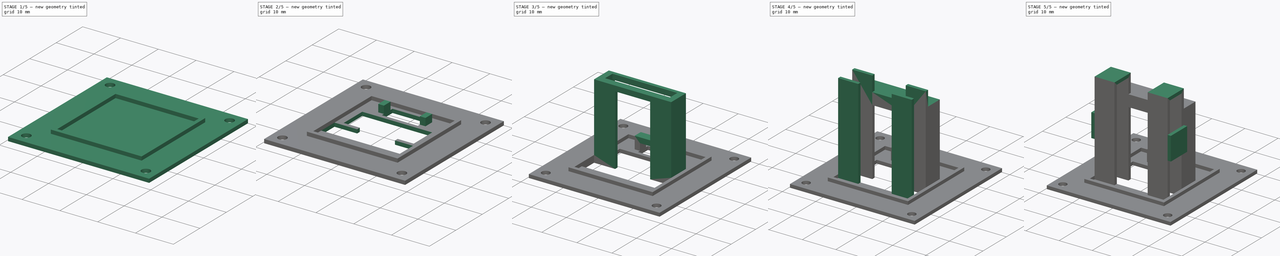
[diagram: build sequence overview — one tinted view per stage of 5, left to right]
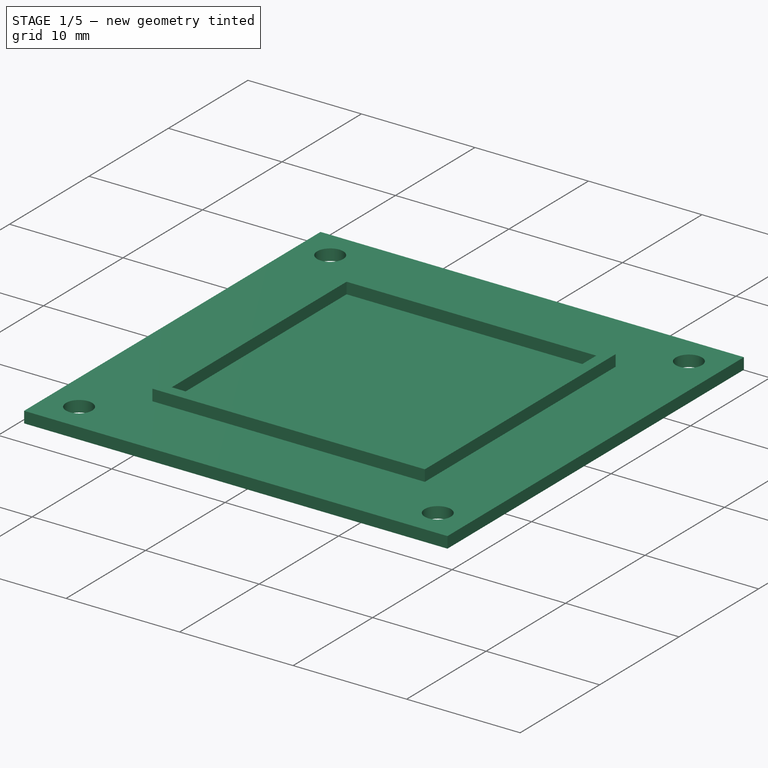
[diagram: stage 1 of 5 — iso view after this stage's code; geometry added in this stage tinted green]
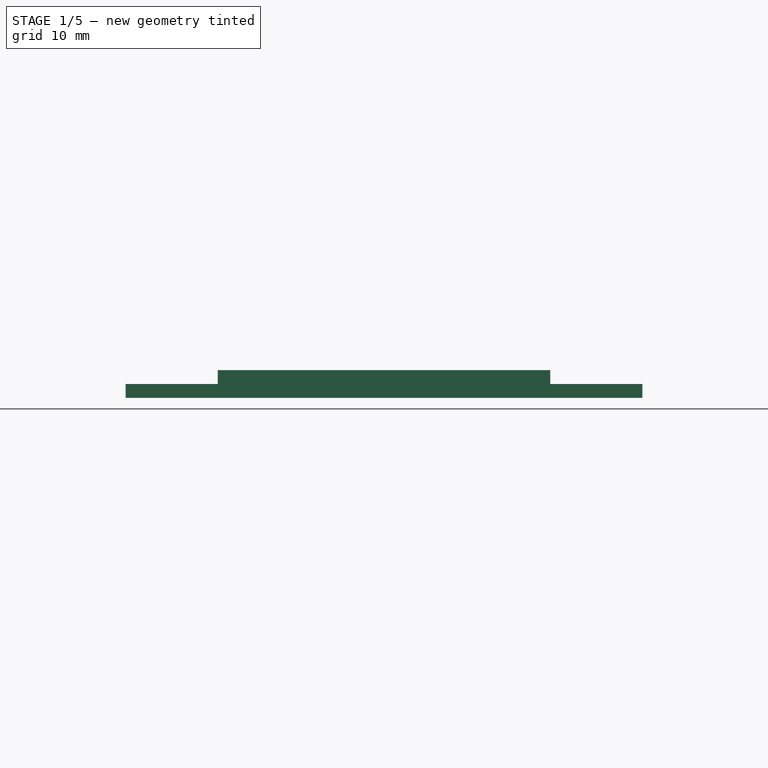
[diagram: stage 1 of 5 — front view after this stage's code; geometry added in this stage tinted green]
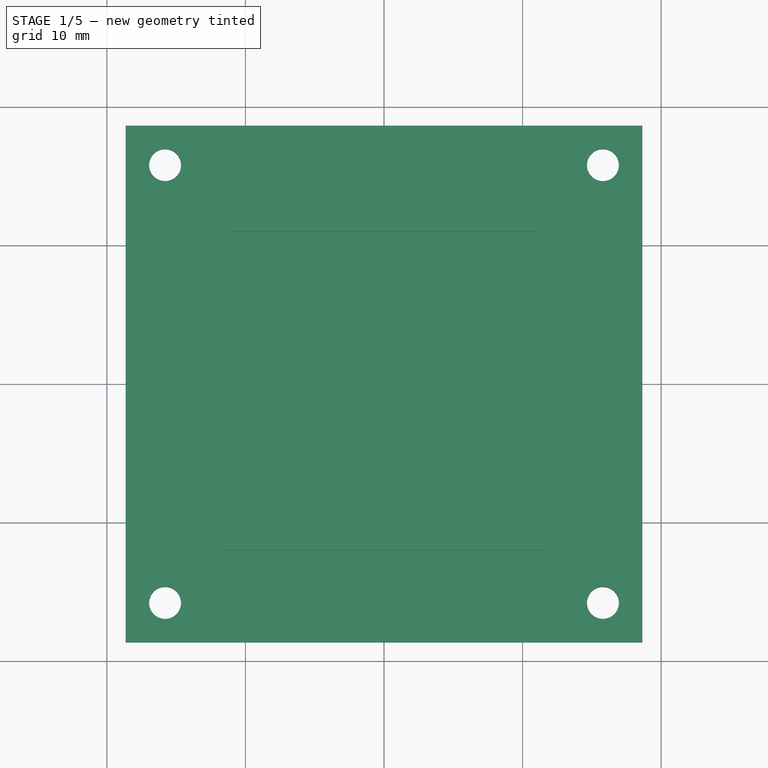
[diagram: stage 1 of 5 — top view after this stage's code; geometry added in this stage tinted green]
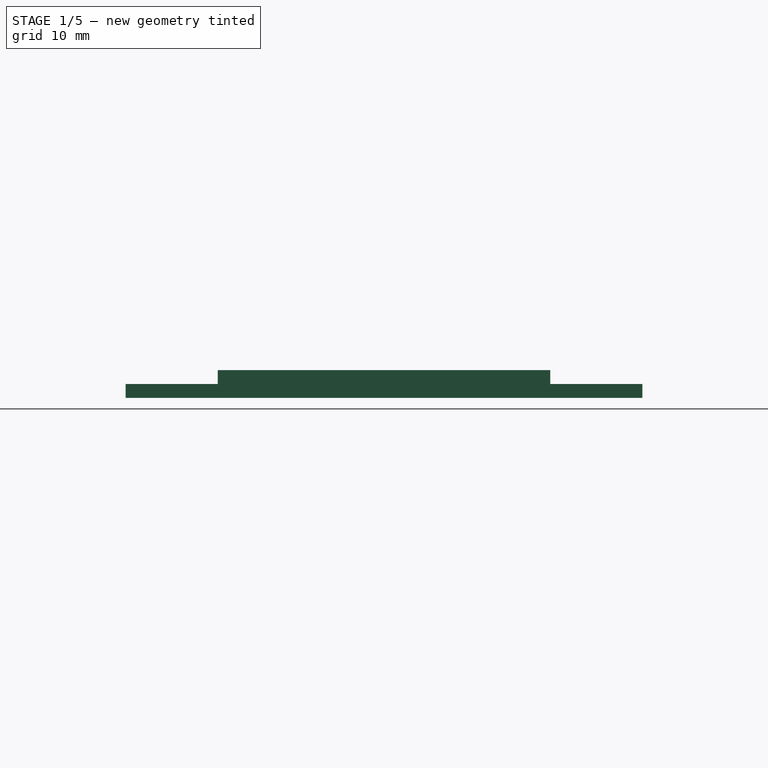
[diagram: stage 1 of 5 — right view after this stage's code; geometry added in this stage tinted green]
FCSTD DOCUMENT  (FreeCAD 1.0R39109 (Git))
Label: bbk3_inside
License: All rights reserved
LicenseURL: https://en.wikipedia.org/wiki/All_rights_reserved
objects: Sketcher::SketchObject×15, PartDesign::Pad×12, PartDesign::Pocket×3, Spreadsheet::Sheet×1, PartDesign::Body×1
note: 76 computed .brp shape members not serialized (recipe doc carries the construction recipe); baked Part::Feature solids carry a one-line shape summary decoded from their .brp

FEATURE [Spreadsheet::Sheet] Spreadsheet  label="inside_parameters"
  cells = A1='plate_length; B1(plate_length)=37.3; A2='plate_height; B2(plate_height)=1; A3='radius_screw; B3(radius_screw)=1.15; A4='screw_ditsance; B4(screw_ditsance)=15.8; A5='fortification_length; B5(fortification_length)=24; A6='fortification_height; B6(fortification_height)=1; A7='fortification_width; B7(fortification_width)=1; A8='battery_hole_width; B8(battery_hole_width)=5; A9='battery_hole_distance; B9(battery_hole_distance)=5.5; A10='pcb_hole_width; B10(pcb_hole_width)=7; A11='pcb_hole_length; B11(pcb_hole_length)=18.5; A12='pcb_hole_distance; B12(pcb_hole_distance)=1.5; A13='pcb_battery_hole_length; B13(pcb_battery_hole_length)=10; A14='switch_hole_length; B14(switch_hole_length)=9.5; A15='switch_hole_width; B15(switch_hole_width)=4; A16='switch_distance; B16(switch_distance)=8; A17='switch_cover_pilar_height; B17(switch_cover_pilar_height)=2; A18='switch_cover_pilar_width; B18(switch_cover_pilar_width)=1.5; A19='switch_cover_pilar_length; B19(switch_cover_pilar_length)=2.5; A20='switch_cover_height; B20(switch_cover_height)=1.5; A21='pcb_cover_pillar_height; B21(pcb_cover_pillar_height)=19; A22='pcb_cover_heitght; B22(pcb_cover_heitght)=2; A23='pcb_cover_pillar_length; B23(pcb_cover_pillar_length)=6; A24='pcb_cover_side_height; B24(pcb_cover_side_height)=1.5; A25='pcb_cover_side_width; B25(pcb_cover_side_width)=2; A26='battery_cover_pillar_length; B26(battery_cover_pillar_length)=6; A27='battery_cover_pillar_height; B27(battery_cover_pillar_height)=27; A28='battery_cover_pillar_width; B28(battery_cover_pillar_width)=1; A29='battery_cover_height; B29(battery_cover_height)=1
FEATURE [Sketcher::SketchObject] Sketch
  ArcFitTolerance = 1e-06
  AttachmentSupport = -> [XY_Plane]
  FullyConstrained = true
  MakeInternals = false
  MapMode = 5
  expr: Constraints[8] = <<inside_parameters>>.plate_length
  sketch-geometry (7):
    g0: LineSegment StartX=-18.65 StartY=18.65 StartZ=0 EndX=-18.65 EndY=-18.65 EndZ=0
    g1: LineSegment StartX=-18.65 StartY=-18.65 StartZ=0 EndX=18.65 EndY=-18.65 EndZ=0
    g2: LineSegment StartX=18.65 StartY=-18.65 StartZ=0 EndX=18.65 EndY=18.65 EndZ=0
    g3: LineSegment StartX=18.65 StartY=18.65 StartZ=0 EndX=-18.65 EndY=18.65 EndZ=0
    g4: LineSegment [constr] StartX=-18.65 StartY=18.65 StartZ=0 EndX=18.65 EndY=-18.65 EndZ=0
    g5: LineSegment [constr] StartX=18.65 StartY=18.65 StartZ=0 EndX=-18.65 EndY=-18.65 EndZ=0
    g6: GeomPoint [constr] X=0 Y=0 Z=0
  constraints (17):
    c: Coincident(g0,g1)
    c: Coincident(g1,g2)
    c: Coincident(g2,g3)
    c: Coincident(g3,g0)
    c: Vertical(g0)
    c: Vertical(g2)
    c: Horizontal(g1)
    c: Horizontal(g3)
    c: DistanceX(g3,g3) = 37.3
    c: Equal(g3,g0)
    c: Coincident(g4,g0)
    c: Coincident(g4,g1)
    c: Coincident(g5,g2)
    c: Coincident(g5,g0)
    c: PointOnObject(g6,g5)
    c: PointOnObject(g6,g4)
    c: Coincident(g6,g-1)
FEATURE [PartDesign::Pad] Pad
  Direction = (0,0,1)
  Length = 1
  Length2 = 10
  Profile = -> Sketch
  ReferenceAxis = -> Sketch [N_Axis]
  Refine = true
  Suppressed = false
  Type = 0
  expr: Length = <<inside_parameters>>.plate_height
FEATURE [Sketcher::SketchObject] Sketch001
  ArcFitTolerance = 1e-06
  AttachmentSupport = -> [Pad]
  FullyConstrained = true
  MakeInternals = false
  MapMode = 5
  Placement = pos=(0,0,1) rot=(0,0,1;0rad)
  expr: Constraints[0] = <<inside_parameters>>.radius_screw
  expr: Constraints[10] = <<inside_parameters>>.screw_ditsance
  expr: Constraints[11] = <<inside_parameters>>.screw_ditsance
  expr: Constraints[4] = <<inside_parameters>>.screw_ditsance
  expr: Constraints[5] = <<inside_parameters>>.screw_ditsance
  expr: Constraints[6] = <<inside_parameters>>.screw_ditsance
  expr: Constraints[7] = <<inside_parameters>>.screw_ditsance
  expr: Constraints[8] = <<inside_parameters>>.screw_ditsance
  expr: Constraints[9] = <<inside_parameters>>.screw_ditsance
  sketch-geometry (4):
    g0: Circle CenterX=15.8 CenterY=15.8 CenterZ=0 NormalX=0 NormalY=0 NormalZ=1 AngleXU=0 Radius=1.15
    g1: Circle CenterX=-15.8 CenterY=-15.8 CenterZ=0 NormalX=0 NormalY=0 NormalZ=1 AngleXU=0 Radius=1.15
    g2: Circle CenterX=15.8 CenterY=-15.8 CenterZ=0 NormalX=0 NormalY=0 NormalZ=1 AngleXU=0 Radius=1.15
    g3: Circle CenterX=-15.8 CenterY=15.8 CenterZ=0 NormalX=0 NormalY=0 NormalZ=1 AngleXU=0 Radius=1.15
  constraints (12):
    c: Radius(g0) = 1.15
    c: Radius(g1) = 1.15
    c: Radius(g2) = 1.15
    c: Radius(g3) = 1.15
    c: DistanceX(g3,g-1) = 15.8
    c: DistanceX(g-1,g0) = 15.8
    c: DistanceX(g-1,g2) = 15.8
    c: DistanceX(g1,g-1) = 15.8
    c: DistanceY(g1,g-1) = 15.8
    c: DistanceY(g2,g-1) = 15.8
    c: DistanceY(g-1,g0) = 15.8
    c: DistanceY(g-1,g3) = 15.8
FEATURE [PartDesign::Pocket] Pocket
  BaseFeature = -> Pad
  Direction = (0,0,-1)
  Length = 5
  Length2 = 5
  Profile = -> Sketch001
  ReferenceAxis = -> Sketch001 [N_Axis]
  Refine = true
  Suppressed = false
  Type = 1
FEATURE [Sketcher::SketchObject] Sketch002
  ArcFitTolerance = 1e-06
  AttachmentSupport = -> [Pocket]
  FullyConstrained = true
  MakeInternals = false
  MapMode = 5
  Placement = pos=(0,0,1) rot=(0,0,1;0rad)
  expr: Constraints[26] = <<inside_parameters>>.fortification_width
  expr: Constraints[27] = <<inside_parameters>>.fortification_width
  expr: Constraints[8] = <<inside_parameters>>.fortification_length
  sketch-geometry (10):
    g0: LineSegment StartX=-12 StartY=12 StartZ=0 EndX=-12 EndY=-12 EndZ=0
    g1: LineSegment StartX=-12 StartY=-12 StartZ=0 EndX=12 EndY=-12 EndZ=0
    g2: LineSegment StartX=12 StartY=-12 StartZ=0 EndX=12 EndY=12 EndZ=0
    g3: LineSegment StartX=12 StartY=12 StartZ=0 EndX=-12 EndY=12 EndZ=0
    g4: LineSegment [constr] StartX=12 StartY=12 StartZ=0 EndX=-12 EndY=-12 EndZ=0
    g5: LineSegment [constr] StartX=-12 StartY=12 StartZ=0 EndX=12 EndY=-12 EndZ=0
    g6: LineSegment StartX=-11 StartY=11 StartZ=0 EndX=-11 EndY=-11 EndZ=0
    g7: LineSegment StartX=-11 StartY=-11 StartZ=0 EndX=11 EndY=-11 EndZ=0
    g8: LineSegment StartX=11 StartY=-11 StartZ=0 EndX=11 EndY=11 EndZ=0
    g9: LineSegment StartX=11 StartY=11 StartZ=0 EndX=-11 EndY=11 EndZ=0
  constraints (28):
    c: Coincident(g0,g1)
    c: Coincident(g1,g2)
    c: Coincident(g2,g3)
    c: Coincident(g3,g0)
    c: Vertical(g0)
    c: Vertical(g2)
    c: Horizontal(g1)
    c: Horizontal(g3)
    c: DistanceX(g3,g3) = 24
    c: Equal(g3,g0)
    c: Coincident(g4,g2)
    c: Coincident(g4,g0)
    c: Coincident(g5,g0)
    c: Coincident(g5,g1)
    c: PointOnObject(g-1,g4)
    c: PointOnObject(g-1,g5)
    c: Coincident(g6,g7)
    c: Coincident(g7,g8)
    c: Coincident(g8,g9)
    c: Coincident(g9,g6)
    c: Vertical(g6)
    c: Vertical(g8)
    c: Horizontal(g7)
    c: Horizontal(g9)
    c: PointOnObject(g6,g5)
    c: PointOnObject(g7,g5)
    c: Distance(g6,g0) = 1
    c: Distance(g7,g2) = 1
FEATURE [PartDesign::Pad] Pad001
  BaseFeature = -> Pocket
  Direction = (0,0,1)
  Length = 1
  Length2 = 10
  Profile = -> Sketch002
  ReferenceAxis = -> Sketch002 [N_Axis]
  Refine = true
  Suppressed = false
  Type = 0
  expr: Length = <<inside_parameters>>.fortification_height
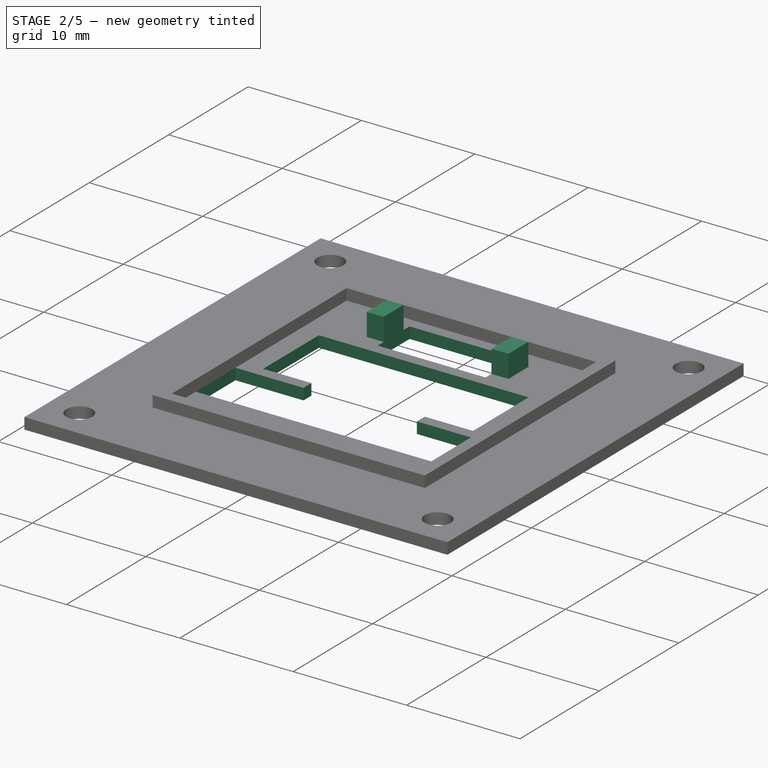
[diagram: stage 2 of 5 — iso view after this stage's code; geometry added in this stage tinted green]
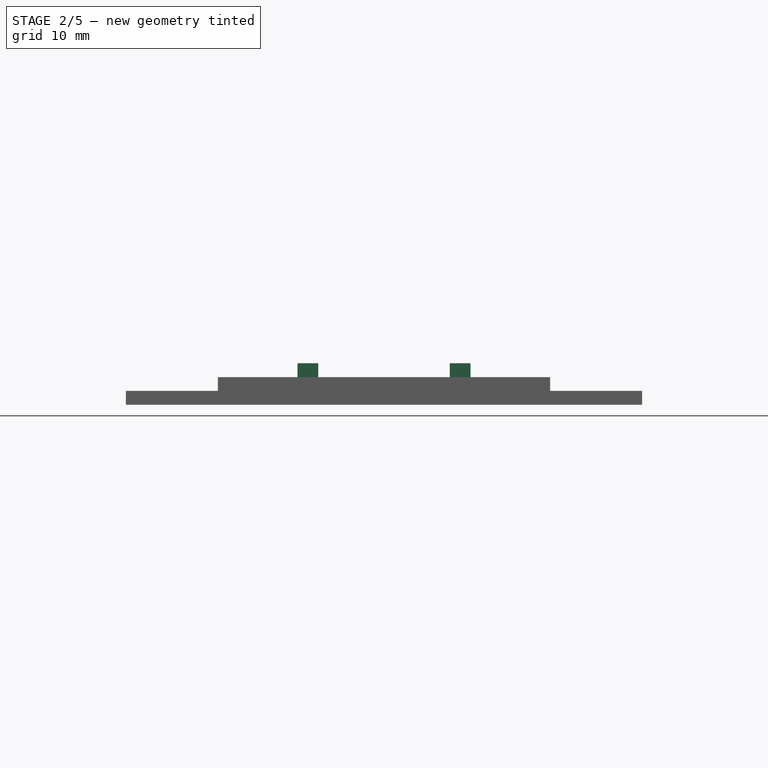
[diagram: stage 2 of 5 — front view after this stage's code; geometry added in this stage tinted green]
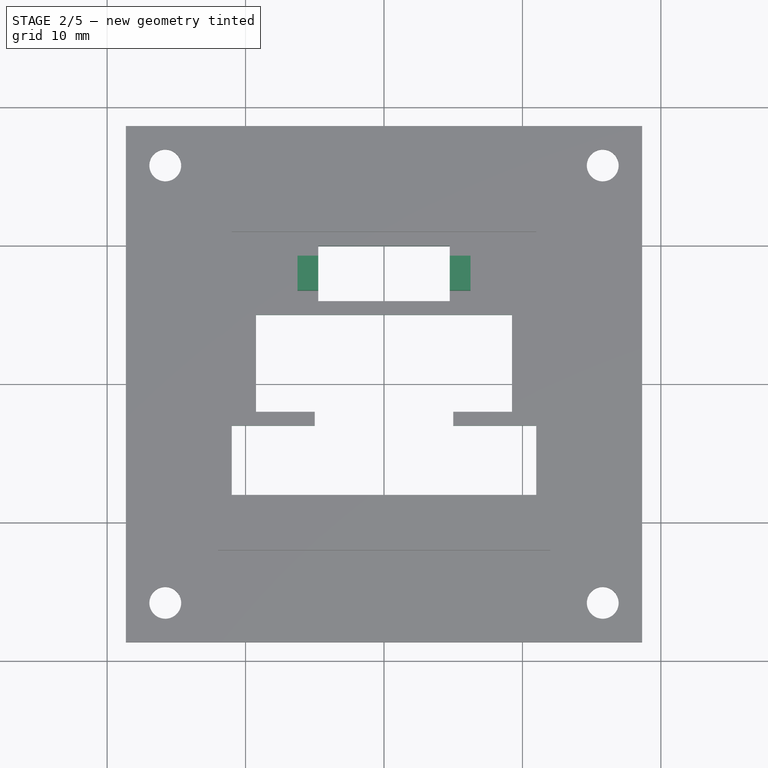
[diagram: stage 2 of 5 — top view after this stage's code; geometry added in this stage tinted green]
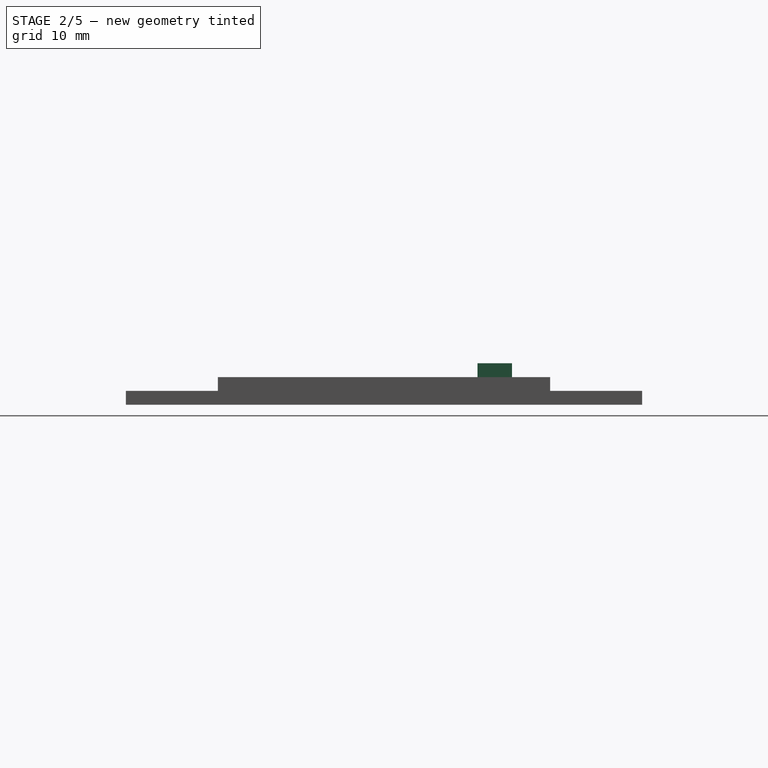
[diagram: stage 2 of 5 — right view after this stage's code; geometry added in this stage tinted green]
FEATURE [Sketcher::SketchObject] Sketch003
  ArcFitTolerance = 1e-06
  AttachmentSupport = -> [Pad001]
  ExternalGeometry = -> [Pad001]
  FullyConstrained = true
  MakeInternals = false
  MapMode = 5
  Placement = pos=(0,0,1) rot=(0,0,1;0rad)
  expr: Constraints[14] = <<inside_parameters>>.battery_hole_distance
  expr: Constraints[20] = <<inside_parameters>>.pcb_hole_length
  expr: Constraints[21] = <<inside_parameters>>.pcb_hole_width
  expr: Constraints[28] = <<inside_parameters>>.pcb_hole_distance
  expr: Constraints[31] = <<inside_parameters>>.pcb_battery_hole_length
  expr: Constraints[7] = <<inside_parameters>>.battery_hole_width
  sketch-geometry (21):
    g0: LineSegment StartX=-11 StartY=-3 StartZ=0 EndX=-11 EndY=-8 EndZ=0
    g1: LineSegment StartX=-11 StartY=-8 StartZ=0 EndX=11 EndY=-8 EndZ=0
    g2: LineSegment StartX=11 StartY=-8 StartZ=0 EndX=11 EndY=-3 EndZ=0
    g3: LineSegment [constr] StartX=-11 StartY=-8 StartZ=0 EndX=11 EndY=-3 EndZ=0
    g4: LineSegment [constr] StartX=-11 StartY=-3 StartZ=0 EndX=11 EndY=-8 EndZ=0
    g5: GeomPoint [constr] X=1.25328e-11 Y=-5.5 Z=0
    g6: LineSegment StartX=-9.25 StartY=5 StartZ=0 EndX=-9.25 EndY=-2 EndZ=0
    g7: LineSegment StartX=9.25 StartY=-2 StartZ=0 EndX=9.25 EndY=5 EndZ=0
    g8: LineSegment StartX=9.25 StartY=5 StartZ=0 EndX=-9.25 EndY=5 EndZ=0
    g9: LineSegment [constr] StartX=9.25 StartY=5 StartZ=0 EndX=-9.25 EndY=-2 EndZ=0
    g10: LineSegment [constr] StartX=-9.25 StartY=5 StartZ=0 EndX=9.25 EndY=-2 EndZ=0
    g11: GeomPoint [constr] X=0 Y=1.5 Z=0
    g12: LineSegment StartX=-5 StartY=-2 StartZ=0 EndX=-5 EndY=-3 EndZ=0
    g13: LineSegment StartX=5 StartY=-3 StartZ=0 EndX=5 EndY=-2 EndZ=0
    g14: LineSegment [constr] StartX=-5 StartY=-3 StartZ=0 EndX=5 EndY=-2 EndZ=0
    g15: LineSegment [constr] StartX=-5 StartY=-2 StartZ=0 EndX=5 EndY=-3 EndZ=0
    g16: GeomPoint [constr] X=0 Y=-2.5 Z=0
    g17: LineSegment StartX=-9.25 StartY=-2 StartZ=0 EndX=-5 EndY=-2 EndZ=0
    g18: LineSegment StartX=-5 StartY=-3 StartZ=0 EndX=-11 EndY=-3 EndZ=0
    g19: LineSegment StartX=5 StartY=-3 StartZ=0 EndX=11 EndY=-3 EndZ=0
    g20: LineSegment StartX=5 StartY=-2 StartZ=0 EndX=9.25 EndY=-2 EndZ=0
  constraints (54):
    c: Coincident(g0,g1)
    c: Coincident(g1,g2)
    c: Vertical(g0)
    c: Vertical(g2)
    c: Horizontal(g1)
    c: PointOnObject(g0,g-3)
    c: PointOnObject(g1,g-4)
    c: DistanceY(g2,g2) = 5
    c: Coincident(g3,g0)
    c: Coincident(g3,g2)
    c: Coincident(g4,g0)
    c: Coincident(g4,g1)
    c: PointOnObject(g5,g3)
    c: PointOnObject(g5,g4)
    c: DistanceY(g5,g-1) = 5.5
    c: Coincident(g7,g8)
    c: Coincident(g8,g6)
    c: Vertical(g6)
    c: Vertical(g7)
    c: Horizontal(g8)
    c: DistanceX(g8,g8) = 18.5
    c: DistanceY(g7,g7) = 7
    c: Coincident(g9,g7)
    c: Coincident(g9,g6)
    c: Coincident(g10,g6)
    c: PointOnObject(g11,g9)
    c: PointOnObject(g11,g10)
    c: DistanceX(g11,g-1) = 0
    c: DistanceY(g-1,g11) = 1.5
    c: Vertical(g12)
    c: Vertical(g13)
    c: DistanceX(g12,g13) = 10
    c: Coincident(g14,g12)
    c: Coincident(g14,g13)
    c: Coincident(g15,g12)
    c: PointOnObject(g16,g14)
    c: PointOnObject(g16,g15)
    c: DistanceX(g-1,g16) = 0
    c: Coincident(g17,g6)
    c: Coincident(g17,g12)
    c: Horizontal(g17)
    c: Coincident(g18,g12)
    c: Coincident(g18,g0)
    c: Horizontal(g18)
    c: Coincident(g19,g2)
    c: Horizontal(g19)
    c: Coincident(g20,g13)
    c: Coincident(g20,g7)
    c: Horizontal(g20)
    c: Coincident(g19,g13)
    c: Coincident(g15,g13)
    c: Equal(g14,g15)
    c: Equal(g17,g20)
    c: Coincident(g10,g7)
FEATURE [PartDesign::Pocket] Pocket001
  BaseFeature = -> Pad001
  Direction = (0,0,-1)
  Length = 5
  Length2 = 5
  Profile = -> Sketch003
  ReferenceAxis = -> Sketch003 [N_Axis]
  Refine = true
  Suppressed = false
  Type = 0
FEATURE [Sketcher::SketchObject] Sketch004
  ArcFitTolerance = 1e-06
  AttachmentSupport = -> [Pocket001]
  FullyConstrained = true
  MakeInternals = false
  MapMode = 5
  Placement = pos=(0,0,1) rot=(0,0,1;0rad)
  expr: Constraints[17] = <<inside_parameters>>.switch_distance
  expr: Constraints[8] = <<inside_parameters>>.switch_hole_length
  expr: Constraints[9] = <<inside_parameters>>.switch_hole_width
  sketch-geometry (7):
    g0: LineSegment StartX=-4.75 StartY=10 StartZ=0 EndX=-4.75 EndY=6 EndZ=0
    g1: LineSegment StartX=-4.75 StartY=6 StartZ=0 EndX=4.75 EndY=6 EndZ=0
    g2: LineSegment StartX=4.75 StartY=6 StartZ=0 EndX=4.75 EndY=10 EndZ=0
    g3: LineSegment StartX=4.75 StartY=10 StartZ=0 EndX=-4.75 EndY=10 EndZ=0
    g4: LineSegment [constr] StartX=-4.75 StartY=6 StartZ=0 EndX=4.75 EndY=10 EndZ=0
    g5: LineSegment [constr] StartX=-4.75 StartY=10 StartZ=0 EndX=4.75 EndY=6 EndZ=0
    g6: GeomPoint [constr] X=0 Y=8 Z=0
  constraints (18):
    c: Coincident(g0,g1)
    c: Coincident(g1,g2)
    c: Coincident(g2,g3)
    c: Coincident(g3,g0)
    c: Vertical(g0)
    c: Vertical(g2)
    c: Horizontal(g1)
    c: Horizontal(g3)
    c: DistanceX(g3,g3) = 9.5
    c: DistanceY(g2,g2) = 4
    c: Coincident(g4,g0)
    c: Coincident(g4,g2)
    c: Coincident(g5,g0)
    c: Coincident(g5,g1)
    c: PointOnObject(g6,g4)
    c: PointOnObject(g6,g5)
    c: PointOnObject(g6,g-2)
    c: DistanceY(g-1,g6) = 8
FEATURE [PartDesign::Pocket] Pocket002
  BaseFeature = -> Pocket001
  Direction = (0,0,-1)
  Length = 5
  Length2 = 5
  Profile = -> Sketch004
  ReferenceAxis = -> Sketch004 [N_Axis]
  Refine = true
  Suppressed = false
  Type = 0
FEATURE [Sketcher::SketchObject] Sketch005
  ArcFitTolerance = 1e-06
  AttachmentSupport = -> [Pocket002]
  ExternalGeometry = -> [Pocket002]
  FullyConstrained = true
  MakeInternals = false
  MapMode = 5
  Placement = pos=(0,0,1) rot=(0,0,1;0rad)
  expr: Constraints[10] = <<inside_parameters>>.switch_cover_pilar_length
  expr: Constraints[20] = <<inside_parameters>>.switch_cover_pilar_width
  expr: Constraints[21] = <<inside_parameters>>.switch_cover_pilar_length
  expr: Constraints[9] = <<inside_parameters>>.switch_cover_pilar_width
  sketch-geometry (12):
    g0: LineSegment StartX=-4.75 StartY=9.25 StartZ=0 EndX=-6.25 EndY=9.25 EndZ=0
    g1: LineSegment StartX=-6.25 StartY=9.25 StartZ=0 EndX=-6.25 EndY=6.75 EndZ=0
    g2: LineSegment StartX=-6.25 StartY=6.75 StartZ=0 EndX=-4.75 EndY=6.75 EndZ=0
    g3: LineSegment StartX=-4.75 StartY=6.75 StartZ=0 EndX=-4.75 EndY=9.25 EndZ=0
    g4: LineSegment StartX=4.75 StartY=9.25 StartZ=0 EndX=4.75 EndY=6.75 EndZ=0
    g5: LineSegment StartX=4.75 StartY=6.75 StartZ=0 EndX=6.25 EndY=6.75 EndZ=0
    g6: LineSegment StartX=6.25 StartY=6.75 StartZ=0 EndX=6.25 EndY=9.25 EndZ=0
    g7: LineSegment StartX=6.25 StartY=9.25 StartZ=0 EndX=4.75 EndY=9.25 EndZ=0
    g8: LineSegment [constr] StartX=-4.75 StartY=10 StartZ=0 EndX=-6.25 EndY=9.25 EndZ=0
    g9: LineSegment [constr] StartX=-6.25 StartY=6.75 StartZ=0 EndX=-4.75 EndY=6 EndZ=0
    g10: LineSegment [constr] StartX=4.75 StartY=10 StartZ=0 EndX=6.25 EndY=9.25 EndZ=0
    g11: LineSegment [constr] StartX=6.25 StartY=6.75 StartZ=0 EndX=4.75 EndY=6 EndZ=0
  constraints (32):
    c: Coincident(g0,g1)
    c: Coincident(g1,g2)
    c: Coincident(g2,g3)
    c: Coincident(g3,g0)
    c: Horizontal(g0)
    c: Horizontal(g2)
    c: Vertical(g1)
    c: Vertical(g3)
    c: PointOnObject(g0,g-4)
    c: DistanceX(g0,g0) = 1.5
    c: DistanceY(g1,g1) = 2.5
    c: Coincident(g4,g5)
    c: Coincident(g5,g6)
    c: Coincident(g6,g7)
    c: Coincident(g7,g4)
    c: Vertical(g4)
    c: Vertical(g6)
    c: Horizontal(g5)
    c: Horizontal(g7)
    c: PointOnObject(g4,g-3)
    c: DistanceX(g7,g7) = 1.5
    c: DistanceY(g6,g6) = 2.5
    c: Coincident(g8,g-4)
    c: Coincident(g8,g0)
    c: Coincident(g9,g1)
    c: Coincident(g9,g-4)
    c: Coincident(g10,g-3)
    c: Coincident(g10,g6)
    c: Coincident(g11,g5)
    c: Coincident(g11,g-3)
    c: Equal(g8,g9)
    c: Equal(g11,g10)
FEATURE [PartDesign::Pad] Pad002
  BaseFeature = -> Pocket002
  Direction = (0,0,1)
  Length = 2
  Length2 = 10
  Profile = -> Sketch005
  ReferenceAxis = -> Sketch005 [N_Axis]
  Refine = true
  Suppressed = false
  Type = 0
  expr: Length = <<inside_parameters>>.switch_cover_pilar_height
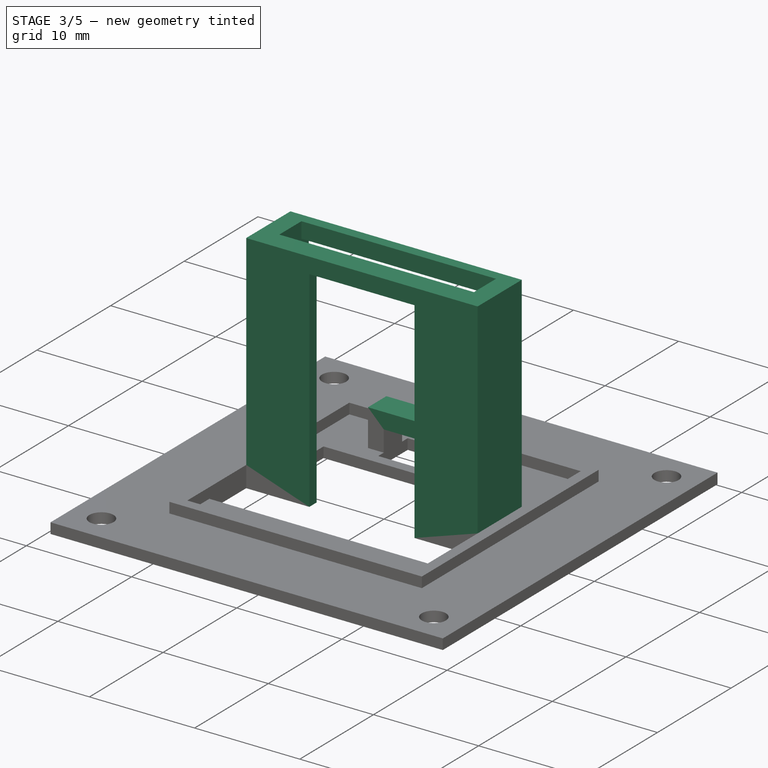
[diagram: stage 3 of 5 — iso view after this stage's code; geometry added in this stage tinted green]
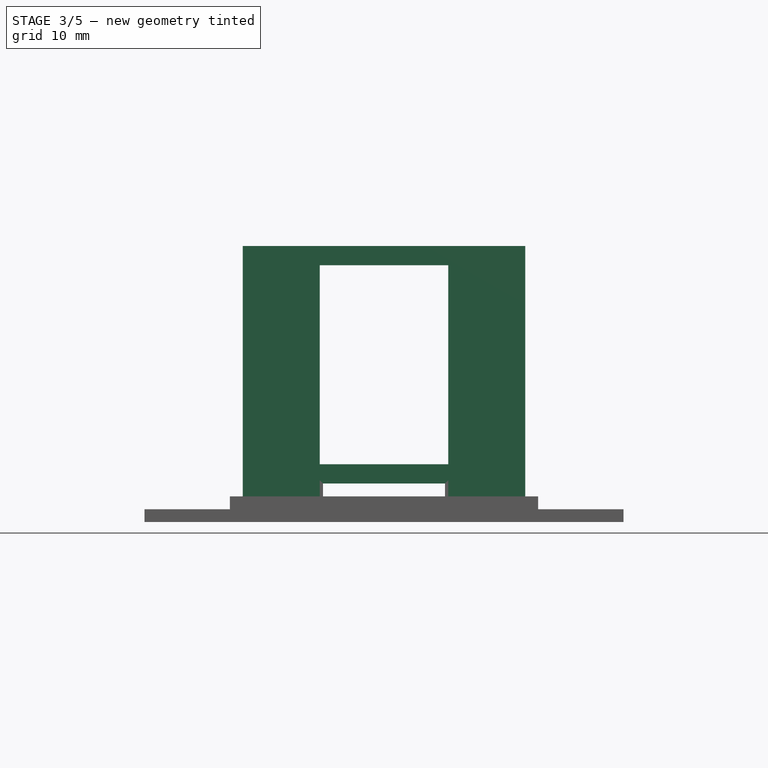
[diagram: stage 3 of 5 — front view after this stage's code; geometry added in this stage tinted green]
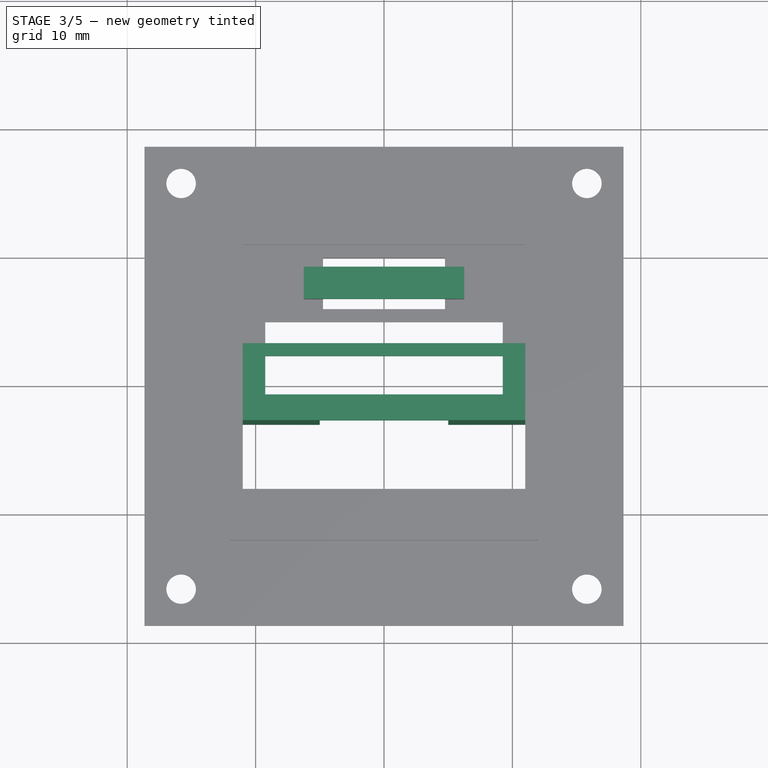
[diagram: stage 3 of 5 — top view after this stage's code; geometry added in this stage tinted green]
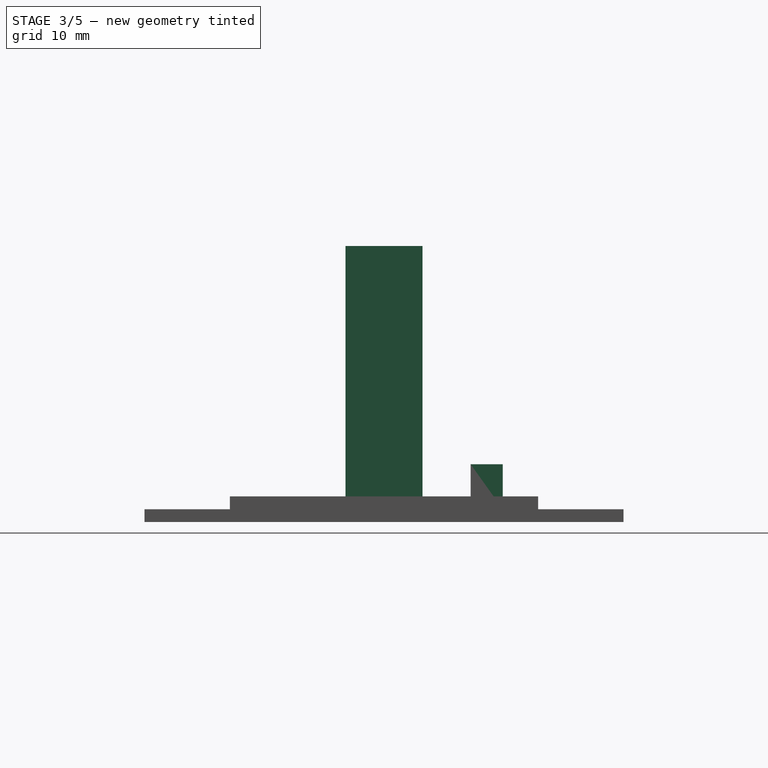
[diagram: stage 3 of 5 — right view after this stage's code; geometry added in this stage tinted green]
FEATURE [Sketcher::SketchObject] Sketch006
  ArcFitTolerance = 1e-06
  AttachmentSupport = -> [Pad002]
  ExternalGeometry = -> [Pad002]
  FullyConstrained = true
  MakeInternals = false
  MapMode = 5
  Placement = pos=(0,0,3) rot=(0,0,1;0rad)
  sketch-geometry (4):
    g0: LineSegment StartX=-6.25 StartY=9.25 StartZ=0 EndX=-6.25 EndY=6.75 EndZ=0
    g1: LineSegment StartX=-6.25 StartY=6.75 StartZ=0 EndX=6.25 EndY=6.75 EndZ=0
    g2: LineSegment StartX=6.25 StartY=6.75 StartZ=0 EndX=6.25 EndY=9.25 EndZ=0
    g3: LineSegment StartX=6.25 StartY=9.25 StartZ=0 EndX=-6.25 EndY=9.25 EndZ=0
  constraints (10):
    c: Coincident(g0,g1)
    c: Coincident(g1,g2)
    c: Coincident(g2,g3)
    c: Coincident(g3,g0)
    c: Vertical(g0)
    c: Vertical(g2)
    c: Horizontal(g1)
    c: Horizontal(g3)
    c: Coincident(g0,g-3)
    c: Coincident(g1,g-4)
FEATURE [PartDesign::Pad] Pad003
  BaseFeature = -> Pad002
  Direction = (0,0,1)
  Length = 1.5
  Length2 = 10
  Profile = -> Sketch006
  ReferenceAxis = -> Sketch006 [N_Axis]
  Refine = true
  Suppressed = false
  Type = 0
  expr: Length = <<inside_parameters>>.switch_cover_height
FEATURE [Sketcher::SketchObject] Sketch007
  ArcFitTolerance = 1e-06
  AttachmentSupport = -> [Pad003]
  ExternalGeometry = -> [Pad003]
  FullyConstrained = true
  MakeInternals = false
  MapMode = 5
  Placement = pos=(0,0,1) rot=(0,0,1;0rad)
  expr: Constraints[13] = <<inside_parameters>>.pcb_cover_pillar_length
  expr: Constraints[27] = <<inside_parameters>>.pcb_cover_pillar_length
  sketch-geometry (12):
    g0: LineSegment StartX=-11 StartY=3 StartZ=0 EndX=-11 EndY=-3 EndZ=0
    g1: LineSegment StartX=-11 StartY=-3 StartZ=0 EndX=-5 EndY=-3 EndZ=0
    g2: LineSegment StartX=-5 StartY=-3 StartZ=0 EndX=-5 EndY=-2 EndZ=0
    g3: LineSegment StartX=-5 StartY=-2 StartZ=0 EndX=-9.25 EndY=-2 EndZ=0
    g4: LineSegment StartX=-9.25 StartY=-2 StartZ=0 EndX=-9.25 EndY=3 EndZ=0
    g5: LineSegment StartX=-9.25 StartY=3 StartZ=0 EndX=-11 EndY=3 EndZ=0
    g6: LineSegment StartX=9.25 StartY=3 StartZ=0 EndX=9.25 EndY=-2 EndZ=0
    g7: LineSegment StartX=9.25 StartY=-2 StartZ=0 EndX=5 EndY=-2 EndZ=0
    g8: LineSegment StartX=5 StartY=-2 StartZ=0 EndX=5 EndY=-3 EndZ=0
    g9: LineSegment StartX=5 StartY=-3 StartZ=0 EndX=11 EndY=-3 EndZ=0
    g10: LineSegment StartX=11 StartY=-3 StartZ=0 EndX=11 EndY=3 EndZ=0
    g11: LineSegment StartX=11 StartY=3 StartZ=0 EndX=9.25 EndY=3 EndZ=0
  constraints (28):
    c: PointOnObject(g0,g-6)
    c: Coincident(g0,g-3)
    c: Coincident(g0,g1)
    c: Coincident(g1,g-3)
    c: Coincident(g1,g2)
    c: Coincident(g2,g-4)
    c: Coincident(g2,g3)
    c: Coincident(g3,g-5)
    c: Coincident(g3,g4)
    c: PointOnObject(g4,g-5)
    c: Coincident(g4,g5)
    c: Coincident(g5,g0)
    c: Perpendicular(g4,g5)
    c: DistanceY(g0,g0) = 6
    c: PointOnObject(g6,g-10)
    c: Coincident(g6,g-10)
    c: Coincident(g6,g7)
    c: Coincident(g7,g-8)
    c: Coincident(g7,g8)
    c: Coincident(g8,g-7)
    c: Coincident(g8,g9)
    c: Coincident(g9,g-7)
    c: Coincident(g9,g10)
    c: PointOnObject(g10,g-9)
    c: Coincident(g10,g11)
    c: Coincident(g11,g6)
    c: Perpendicular(g11,g6)
    c: DistanceY(g10,g10) = 6
FEATURE [PartDesign::Pad] Pad004
  BaseFeature = -> Pad003
  Direction = (0,0,1)
  Length = 19
  Length2 = 10
  Profile = -> Sketch007
  ReferenceAxis = -> Sketch007 [N_Axis]
  Refine = true
  Suppressed = false
  Type = 0
  expr: Length = <<inside_parameters>>.pcb_cover_pillar_height
FEATURE [Sketcher::SketchObject] Sketch008
  ArcFitTolerance = 1e-06
  AttachmentSupport = -> [Pad004]
  ExternalGeometry = -> [Pad004]
  FullyConstrained = true
  MakeInternals = false
  MapMode = 5
  Placement = pos=(0,0,20) rot=(0,0,1;0rad)
  expr: Constraints[6] = <<inside_parameters>>.pcb_cover_side_width / 2
  expr: Constraints[7] = <<inside_parameters>>.pcb_cover_side_width
  sketch-geometry (10):
    g0: LineSegment StartX=-11 StartY=3 StartZ=0 EndX=-11 EndY=2 EndZ=0
    g1: LineSegment StartX=11 StartY=3 StartZ=0 EndX=-11 EndY=3 EndZ=0
    g2: LineSegment StartX=-11 StartY=-1 StartZ=0 EndX=-11 EndY=-3 EndZ=0
    g3: LineSegment StartX=-11 StartY=-3 StartZ=0 EndX=11 EndY=-3 EndZ=0
    g4: LineSegment StartX=-11 StartY=2 StartZ=0 EndX=-11 EndY=-1 EndZ=0
    g5: LineSegment StartX=-9.25 StartY=-1 StartZ=0 EndX=-9.25 EndY=2 EndZ=0
    g6: LineSegment StartX=9.25 StartY=2 StartZ=0 EndX=9.25 EndY=-1 EndZ=0
    g7: LineSegment StartX=-9.25 StartY=-1 StartZ=0 EndX=9.25 EndY=-1 EndZ=0
    g8: LineSegment StartX=-9.25 StartY=2 StartZ=0 EndX=9.25 EndY=2 EndZ=0
    g9: LineSegment StartX=11 StartY=3 StartZ=0 EndX=11 EndY=-3 EndZ=0
  constraints (27):
    c: Coincident(g1,g0)
    c: Vertical(g0)
    c: Coincident(g0,g-4)
    c: Coincident(g2,g3)
    c: Vertical(g2)
    c: Horizontal(g3)
    c: DistanceY(g0,g0) = 1
    c: DistanceY(g2,g2) = 2
    c: Vertical(g5)
    c: Coincident(g4,g0)
    c: PointOnObject(g5,g-5)
    c: Vertical(g6)
    c: Coincident(g7,g5)
    c: Coincident(g7,g6)
    c: Horizontal(g7)
    c: Coincident(g8,g5)
    c: Coincident(g8,g6)
    c: Horizontal(g8)
    c: PointOnObject(g6,g-6)
    c: DistanceY(g5,g0) = 0
    c: Coincident(g4,g2)
    c: Coincident(g9,g1)
    c: Coincident(g9,g3)
    c: Vertical(g9)
    c: Coincident(g1,g-3)
    c: Coincident(g2,g-4)
    c: DistanceY(g5,g2) = 0
FEATURE [Sketcher::SketchObject] Sketch009
  ArcFitTolerance = 1e-06
  FullyConstrained = true
  MakeInternals = false
  MapMode = 5
  Placement = pos=(0,0,21.5) rot=(0,0,1;0rad)
  sketch-geometry (4):
    g0: LineSegment StartX=-11 StartY=3 StartZ=0 EndX=-11 EndY=-3 EndZ=0
    g1: LineSegment StartX=-11 StartY=-3 StartZ=0 EndX=11 EndY=-3 EndZ=0
    g2: LineSegment StartX=11 StartY=-3 StartZ=0 EndX=11 EndY=3 EndZ=0
    g3: LineSegment StartX=11 StartY=3 StartZ=0 EndX=-11 EndY=3 EndZ=0
  constraints (10):
    c: Coincident(g0,g1)
    c: Coincident(g1,g2)
    c: Coincident(g2,g3)
    c: Coincident(g3,g0)
    c: Vertical(g0)
    c: Vertical(g2)
    c: Horizontal(g1)
    c: Horizontal(g3)
    c: Coincident(g0,g-3)
    c: Coincident(g1,g-4)
FEATURE [PartDesign::Pad] Pad006
  BaseFeature = -> Pad004
  Direction = (0,0,1)
  Length = 1.5
  Length2 = 10
  Profile = -> Sketch008
  ReferenceAxis = -> Sketch008 [N_Axis]
  Refine = true
  Suppressed = false
  Type = 0
  expr: Length = <<inside_parameters>>.pcb_cover_side_height
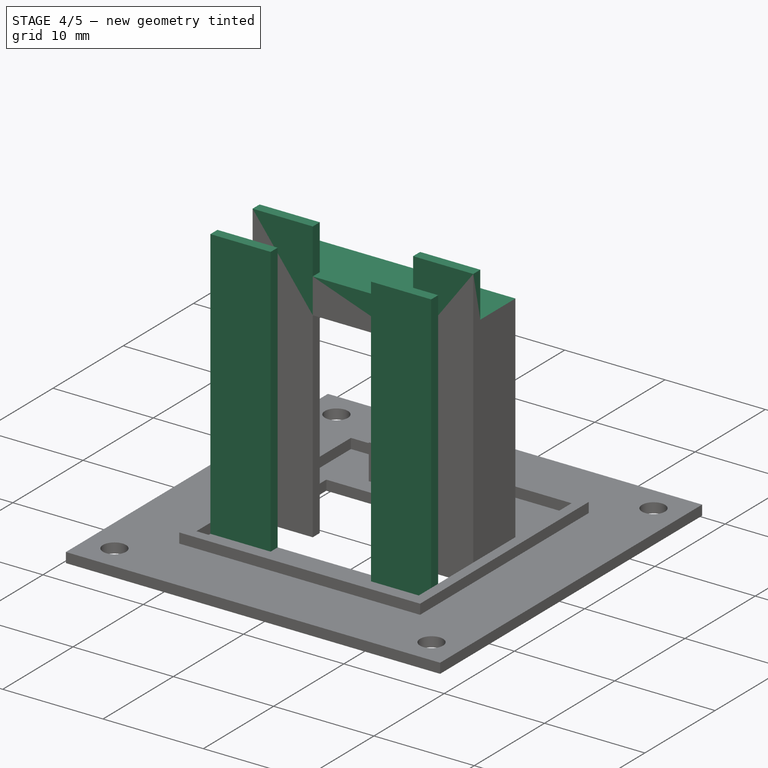
[diagram: stage 4 of 5 — iso view after this stage's code; geometry added in this stage tinted green]
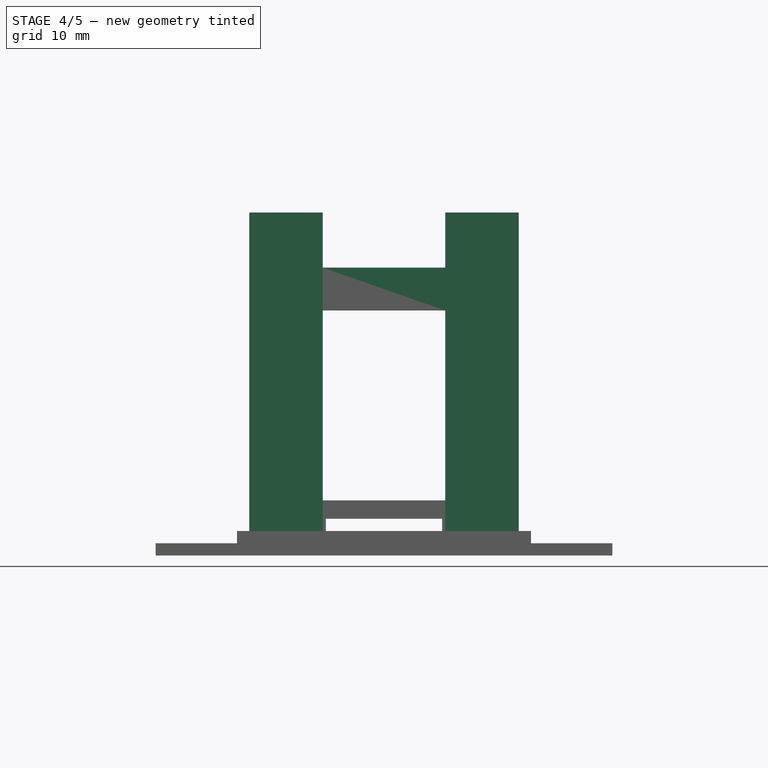
[diagram: stage 4 of 5 — front view after this stage's code; geometry added in this stage tinted green]
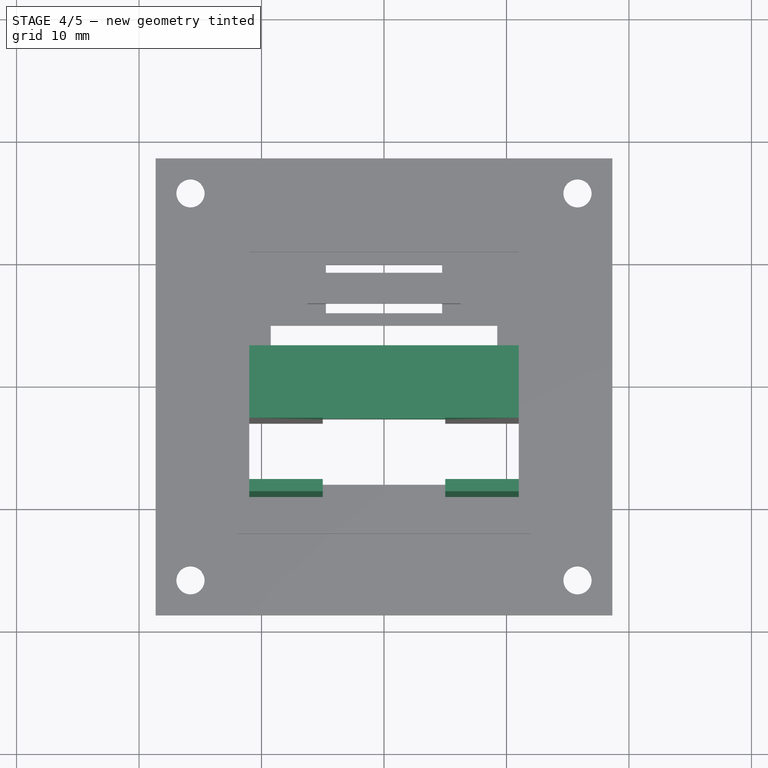
[diagram: stage 4 of 5 — top view after this stage's code; geometry added in this stage tinted green]
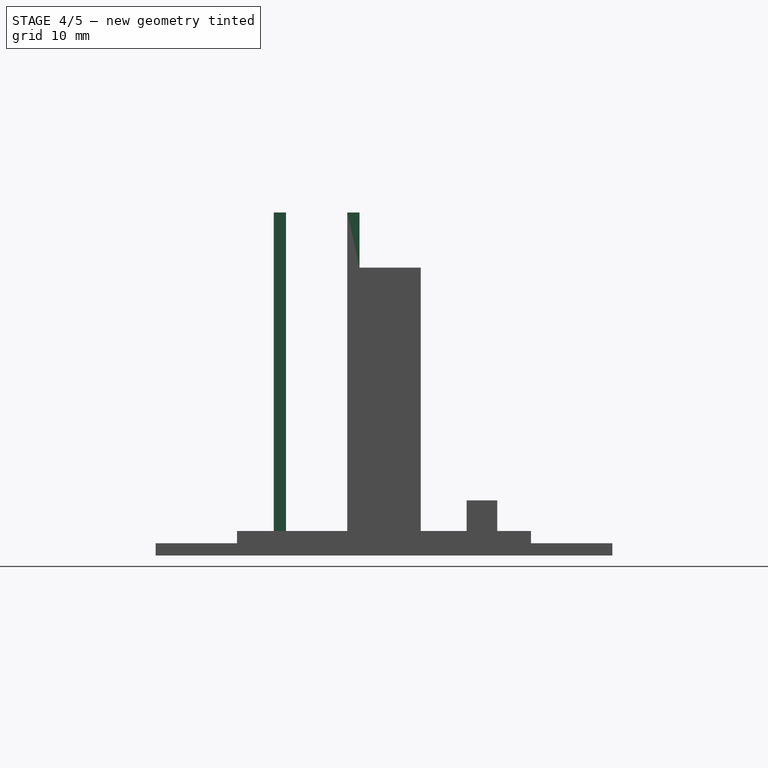
[diagram: stage 4 of 5 — right view after this stage's code; geometry added in this stage tinted green]
FEATURE [PartDesign::Pad] Pad007
  BaseFeature = -> Pad006
  Direction = (0,0,1)
  Length = 2
  Length2 = 10
  Profile = -> Sketch009
  ReferenceAxis = -> Sketch009 [N_Axis]
  Refine = true
  Suppressed = false
  Type = 0
  expr: Length = <<inside_parameters>>.pcb_cover_heitght
FEATURE [Sketcher::SketchObject] Sketch010
  ArcFitTolerance = 1e-06
  AttachmentSupport = -> [Pad007]
  ExternalGeometry = -> [Pad007]
  FullyConstrained = true
  MakeInternals = false
  MapMode = 5
  Placement = pos=(0,0,1) rot=(0,0,1;0rad)
  expr: Constraints[18] = <<inside_parameters>>.battery_cover_pillar_length
  expr: Constraints[20] = <<inside_parameters>>.battery_cover_pillar_width
  sketch-geometry (8):
    g0: LineSegment StartX=-11 StartY=-8 StartZ=0 EndX=-11 EndY=-9 EndZ=0
    g1: LineSegment StartX=-11 StartY=-9 StartZ=0 EndX=-5 EndY=-9 EndZ=0
    g2: LineSegment StartX=-5 StartY=-9 StartZ=0 EndX=-5 EndY=-8 EndZ=0
    g3: LineSegment StartX=-5 StartY=-8 StartZ=0 EndX=-11 EndY=-8 EndZ=0
    g4: LineSegment StartX=11 StartY=-8 StartZ=0 EndX=5 EndY=-8 EndZ=0
    g5: LineSegment StartX=5 StartY=-8 StartZ=0 EndX=5 EndY=-9 EndZ=0
    g6: LineSegment StartX=5 StartY=-9 StartZ=0 EndX=11 EndY=-9 EndZ=0
    g7: LineSegment StartX=11 StartY=-9 StartZ=0 EndX=11 EndY=-8 EndZ=0
  constraints (22):
    c: Coincident(g0,g1)
    c: Coincident(g1,g2)
    c: Coincident(g2,g3)
    c: Coincident(g3,g0)
    c: Vertical(g0)
    c: Vertical(g2)
    c: Horizontal(g1)
    c: Horizontal(g3)
    c: Coincident(g0,g-3)
    c: Coincident(g4,g5)
    c: Coincident(g5,g6)
    c: Coincident(g6,g7)
    c: Coincident(g7,g4)
    c: Horizontal(g4)
    c: Horizontal(g6)
    c: Vertical(g5)
    c: Vertical(g7)
    c: Coincident(g4,g-3)
    c: DistanceX(g3,g3) = 6
    c: Equal(g3,g4)
    c: DistanceY(g2,g2) = 1
    c: Equal(g2,g5)
FEATURE [PartDesign::Pad] Pad008
  BaseFeature = -> Pad007
  Direction = (0,0,1)
  Length = 27
  Length2 = 10
  Profile = -> Sketch010
  ReferenceAxis = -> Sketch010 [N_Axis]
  Refine = true
  Suppressed = false
  Type = 0
  expr: Length = <<inside_parameters>>.battery_cover_pillar_height
FEATURE [Sketcher::SketchObject] Sketch011
  ArcFitTolerance = 1e-06
  AttachmentSupport = -> [Pad008]
  ExternalGeometry = -> [Pad008]
  FullyConstrained = true
  MakeInternals = false
  MapMode = 5
  Placement = pos=(0,0,23.5) rot=(0,0,1;0rad)
  expr: Constraints[20] = <<inside_parameters>>.battery_cover_pillar_length
  expr: Constraints[21] = <<inside_parameters>>.battery_cover_pillar_width
  sketch-geometry (8):
    g0: LineSegment StartX=-11 StartY=-3 StartZ=0 EndX=-5 EndY=-3 EndZ=0
    g1: LineSegment StartX=-5 StartY=-3 StartZ=0 EndX=-5 EndY=-2 EndZ=0
    g2: LineSegment StartX=-5 StartY=-2 StartZ=0 EndX=-11 EndY=-2 EndZ=0
    g3: LineSegment StartX=-11 StartY=-2 StartZ=0 EndX=-11 EndY=-3 EndZ=0
    g4: LineSegment StartX=11 StartY=-3 StartZ=0 EndX=11 EndY=-2 EndZ=0
    g5: LineSegment StartX=11 StartY=-2 StartZ=0 EndX=5 EndY=-2 EndZ=0
    g6: LineSegment StartX=5 StartY=-2 StartZ=0 EndX=5 EndY=-3 EndZ=0
    g7: LineSegment StartX=5 StartY=-3 StartZ=0 EndX=11 EndY=-3 EndZ=0
  constraints (22):
    c: Coincident(g0,g1)
    c: Coincident(g1,g2)
    c: Coincident(g2,g3)
    c: Coincident(g3,g0)
    c: Horizontal(g0)
    c: Horizontal(g2)
    c: Vertical(g1)
    c: Vertical(g3)
    c: Coincident(g0,g-3)
    c: Coincident(g4,g5)
    c: Coincident(g5,g6)
    c: Coincident(g6,g7)
    c: Coincident(g7,g4)
    c: Vertical(g4)
    c: Vertical(g6)
    c: Horizontal(g5)
    c: Horizontal(g7)
    c: Coincident(g4,g-3)
    c: Equal(g1,g6)
    c: Equal(g5,g2)
    c: DistanceX(g2,g2) = 6
    c: DistanceY(g1,g1) = 1
FEATURE [PartDesign::Pad] Pad009
  BaseFeature = -> Pad008
  Direction = (0,0,1)
  Length = 4.5
  Length2 = 10
  Profile = -> Sketch011
  ReferenceAxis = -> Sketch011 [N_Axis]
  Refine = true
  Suppressed = false
  Type = 0
  expr: Length = <<inside_parameters>>.battery_cover_pillar_height - <<inside_parameters>>.pcb_cover_side_height - <<inside_parameters>>.pcb_cover_heitght - <<inside_parameters>>.pcb_cover_pillar_height
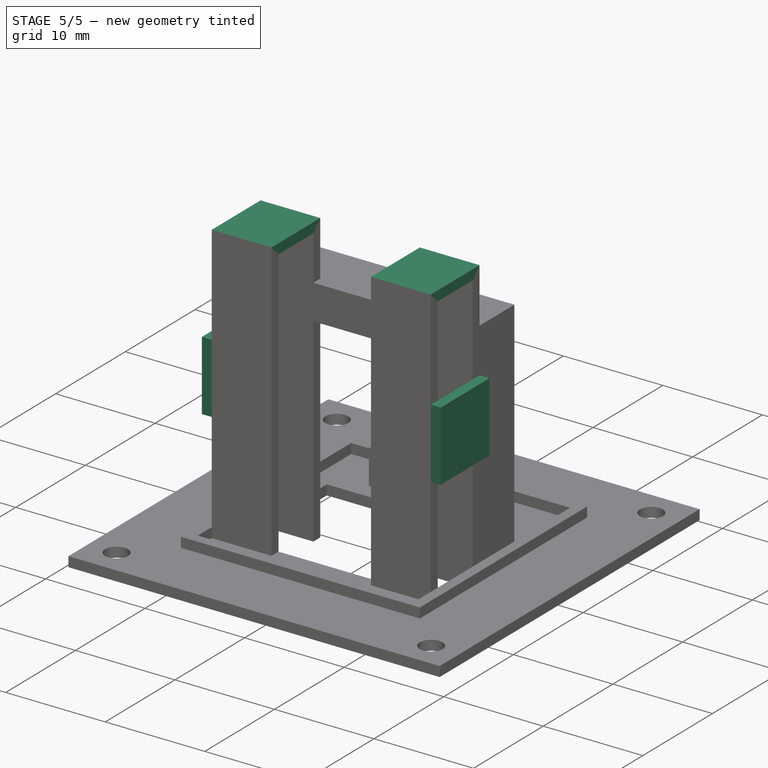
[diagram: stage 5 of 5 — iso view after this stage's code; geometry added in this stage tinted green]
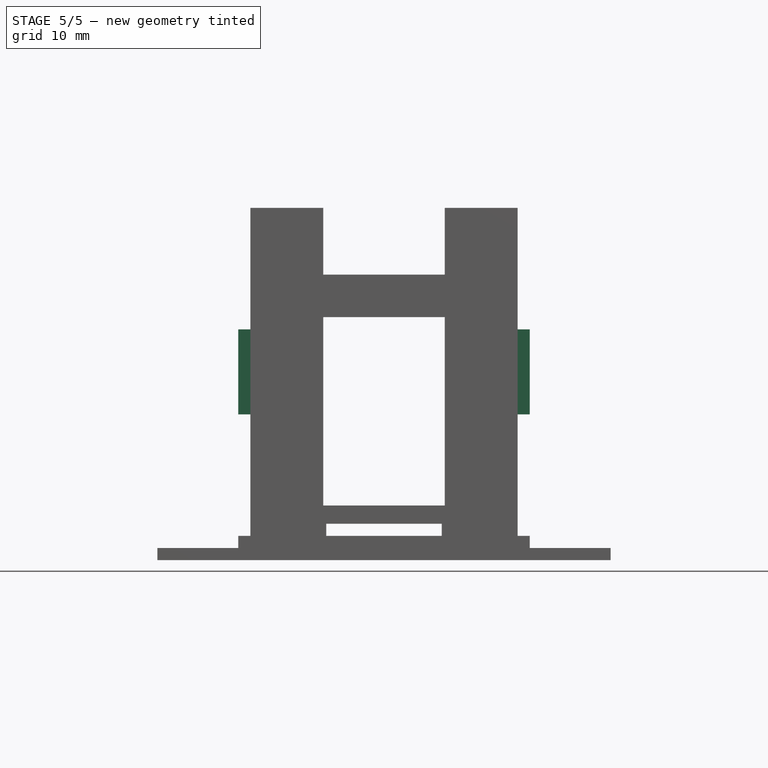
[diagram: stage 5 of 5 — front view after this stage's code; geometry added in this stage tinted green]
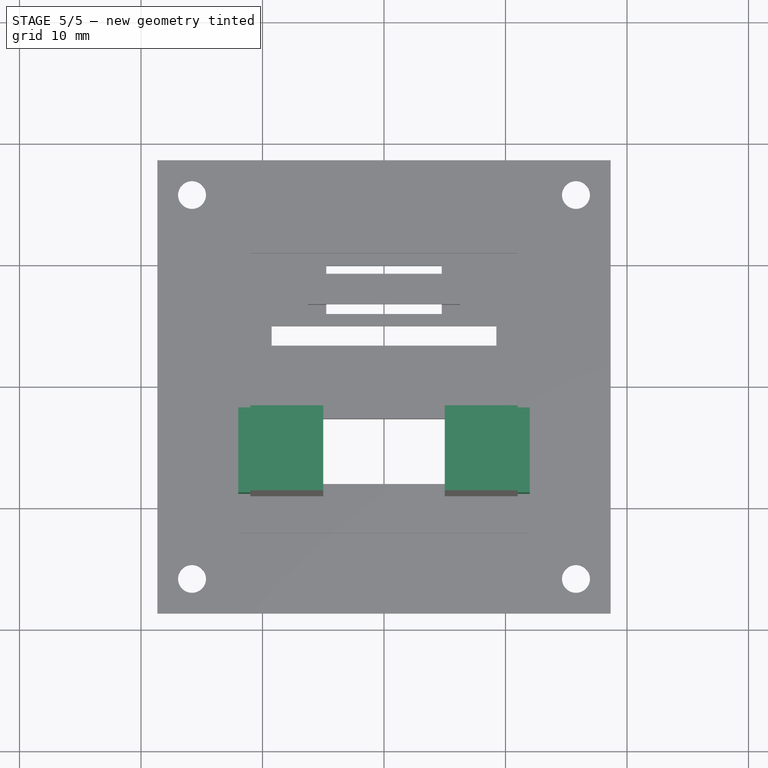
[diagram: stage 5 of 5 — top view after this stage's code; geometry added in this stage tinted green]
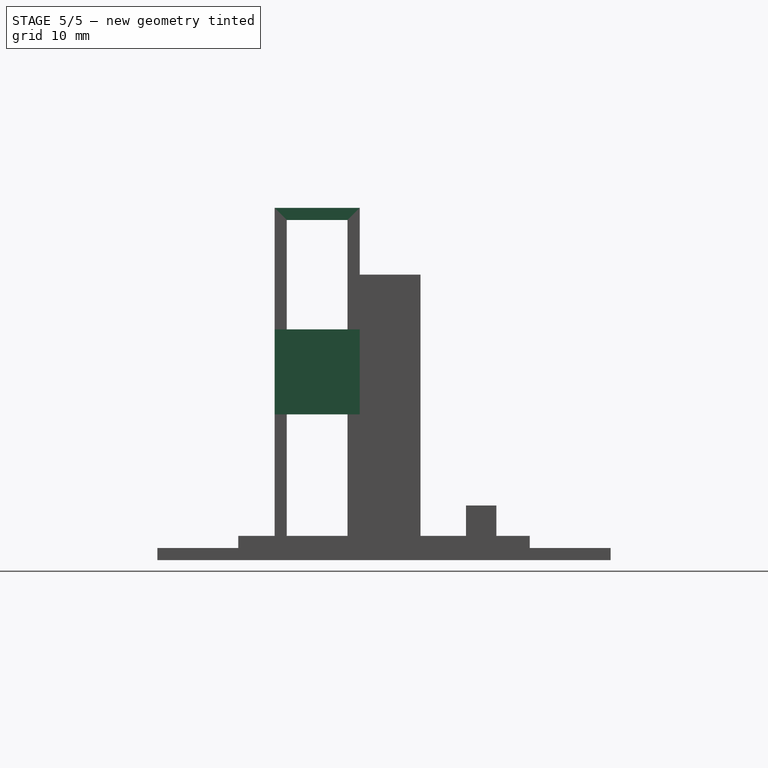
[diagram: stage 5 of 5 — right view after this stage's code; geometry added in this stage tinted green]
FEATURE [Sketcher::SketchObject] Sketch012
  ArcFitTolerance = 1e-06
  AttachmentSupport = -> [Pad009]
  ExternalGeometry = -> [Pad009]
  FullyConstrained = true
  MakeInternals = false
  MapMode = 5
  Placement = pos=(0,0,28) rot=(0,0,1;0rad)
  sketch-geometry (8):
    g0: LineSegment StartX=-11 StartY=-2 StartZ=0 EndX=-11 EndY=-9 EndZ=0
    g1: LineSegment StartX=-11 StartY=-9 StartZ=0 EndX=-5 EndY=-9 EndZ=0
    g2: LineSegment StartX=-5 StartY=-9 StartZ=0 EndX=-5 EndY=-2 EndZ=0
    g3: LineSegment StartX=-5 StartY=-2 StartZ=0 EndX=-11 EndY=-2 EndZ=0
    g4: LineSegment StartX=5 StartY=-2 StartZ=0 EndX=5 EndY=-9 EndZ=0
    g5: LineSegment StartX=5 StartY=-9 StartZ=0 EndX=11 EndY=-9 EndZ=0
    g6: LineSegment StartX=11 StartY=-9 StartZ=0 EndX=11 EndY=-2 EndZ=0
    g7: LineSegment StartX=11 StartY=-2 StartZ=0 EndX=5 EndY=-2 EndZ=0
  constraints (20):
    c: Coincident(g0,g1)
    c: Coincident(g1,g2)
    c: Coincident(g2,g3)
    c: Coincident(g3,g0)
    c: Vertical(g0)
    c: Vertical(g2)
    c: Horizontal(g1)
    c: Horizontal(g3)
    c: Coincident(g0,g-3)
    c: Coincident(g1,g-4)
    c: Coincident(g4,g5)
    c: Coincident(g5,g6)
    c: Coincident(g6,g7)
    c: Coincident(g7,g4)
    c: Vertical(g4)
    c: Vertical(g6)
    c: Horizontal(g5)
    c: Horizontal(g7)
    c: Coincident(g4,g-6)
    c: Coincident(g5,g-5)
FEATURE [PartDesign::Pad] Pad010
  BaseFeature = -> Pad009
  Direction = (0,0,1)
  Length = 1
  Length2 = 10
  Profile = -> Sketch012
  ReferenceAxis = -> Sketch012 [N_Axis]
  Refine = true
  Suppressed = false
  Type = 0
  expr: Length = <<inside_parameters>>.battery_cover_height
FEATURE [Sketcher::SketchObject] Sketch013
  ArcFitTolerance = 1e-06
  AttachmentSupport = -> [Pad010]
  ExternalGeometry = -> [Pad010]
  FullyConstrained = false
  MakeInternals = false
  MapMode = 5
  Placement = pos=(-11,0,0) rot=(0.57735,-0.57735,-0.57735;2.0944rad)
  sketch-geometry (7):
    g0: LineSegment StartX=9 StartY=19 StartZ=0 EndX=2 EndY=19 EndZ=0
    g1: LineSegment StartX=2 StartY=19 StartZ=0 EndX=2 EndY=12 EndZ=0
    g2: LineSegment StartX=2 StartY=12 StartZ=0 EndX=9 EndY=12 EndZ=0
    g3: LineSegment StartX=9 StartY=12 StartZ=0 EndX=9 EndY=19 EndZ=0
    g4: LineSegment [constr] StartX=9 StartY=12 StartZ=0 EndX=9 EndY=2 EndZ=0
    g5: LineSegment [constr] StartX=9 StartY=19 StartZ=0 EndX=9 EndY=29 EndZ=0
    g6: LineSegment [constr] StartX=2 StartY=23.5 StartZ=0 EndX=2 EndY=3.88607 EndZ=0
  constraints (18):
    c: Coincident(g0,g1)
    c: Coincident(g1,g2)
    c: Coincident(g2,g3)
    c: Coincident(g3,g0)
    c: Horizontal(g0)
    c: Horizontal(g2)
    c: Vertical(g1)
    c: Vertical(g3)
    c: PointOnObject(g0,g-3)
    c: Coincident(g4,g2)
    c: Coincident(g4,g-3)
    c: Coincident(g5,g0)
    c: Coincident(g5,g-3)
    c: Equal(g5,g4)
    c: Coincident(g6,g-5)
    c: Vertical(g6)
    c: PointOnObject(g0,g6)
    c: Equal(g0,g3)
FEATURE [PartDesign::Pad] Pad011
  BaseFeature = -> Pad010
  Direction = (-1,0,0)
  Length = 1
  Length2 = 10
  Profile = -> Sketch013
  ReferenceAxis = -> Sketch013 [N_Axis]
  Refine = true
  Suppressed = false
  Type = 0
  expr: Length = <<inside_parameters>>.battery_cover_pillar_width
FEATURE [Sketcher::SketchObject] Sketch014
  ArcFitTolerance = 1e-06
  AttachmentSupport = -> [Pad011]
  ExternalGeometry = -> [Pad011]
  FullyConstrained = false
  MakeInternals = false
  MapMode = 5
  Placement = pos=(11,0,0) rot=(0.57735,0.57735,0.57735;2.0944rad)
  sketch-geometry (7):
    g0: LineSegment StartX=-9 StartY=19 StartZ=0 EndX=-9 EndY=12 EndZ=0
    g1: LineSegment StartX=-9 StartY=12 StartZ=0 EndX=-2 EndY=12 EndZ=0
    g2: LineSegment StartX=-2 StartY=12 StartZ=0 EndX=-2 EndY=19 EndZ=0
    g3: LineSegment StartX=-2 StartY=19 StartZ=0 EndX=-9 EndY=19 EndZ=0
    g4: LineSegment [constr] StartX=-9 StartY=29 StartZ=0 EndX=-9 EndY=19 EndZ=0
    g5: LineSegment [constr] StartX=-9 StartY=12 StartZ=0 EndX=-9 EndY=2 EndZ=0
    g6: LineSegment [constr] StartX=-2 StartY=23.5 StartZ=0 EndX=-2 EndY=3.19238 EndZ=0
  constraints (18):
    c: Coincident(g0,g1)
    c: Coincident(g1,g2)
    c: Coincident(g2,g3)
    c: Coincident(g3,g0)
    c: Vertical(g0)
    c: Vertical(g2)
    c: Horizontal(g1)
    c: Horizontal(g3)
    c: PointOnObject(g0,g-3)
    c: Coincident(g4,g-3)
    c: Coincident(g4,g0)
    c: Coincident(g5,g0)
    c: Coincident(g5,g-3)
    c: Coincident(g6,g-4)
    c: Vertical(g6)
    c: PointOnObject(g2,g6)
    c: Equal(g3,g0)
    c: Equal(g4,g5)
FEATURE [PartDesign::Pad] Pad012
  BaseFeature = -> Pad011
  Direction = (1,0,0)
  Length = 1
  Length2 = 10
  Profile = -> Sketch014
  ReferenceAxis = -> Sketch014 [N_Axis]
  Refine = true
  Suppressed = false
  Type = 0
  expr: Length = <<inside_parameters>>.battery_cover_pillar_width
FEATURE [PartDesign::Body] Body  label="Corps"
  AllowCompound = false
  Group = -> [Sketch,Pad,Sketch001,Pocket,Sketch002,Pad001,Sketch003,Pocket001,Sketch004,Pocket002,Sketch005,Pad002,Sketch006,Pad003,Sketch007,Pad004,Sketch008,Sketch009,Pad006,Pad007,Sketch010,Pad008,Sketch011,Pad009,Sketch012,Pad010,Sketch013,Pad011,Sketch014,Pad012]
  Origin = -> Origin
  Tip = -> Pad012
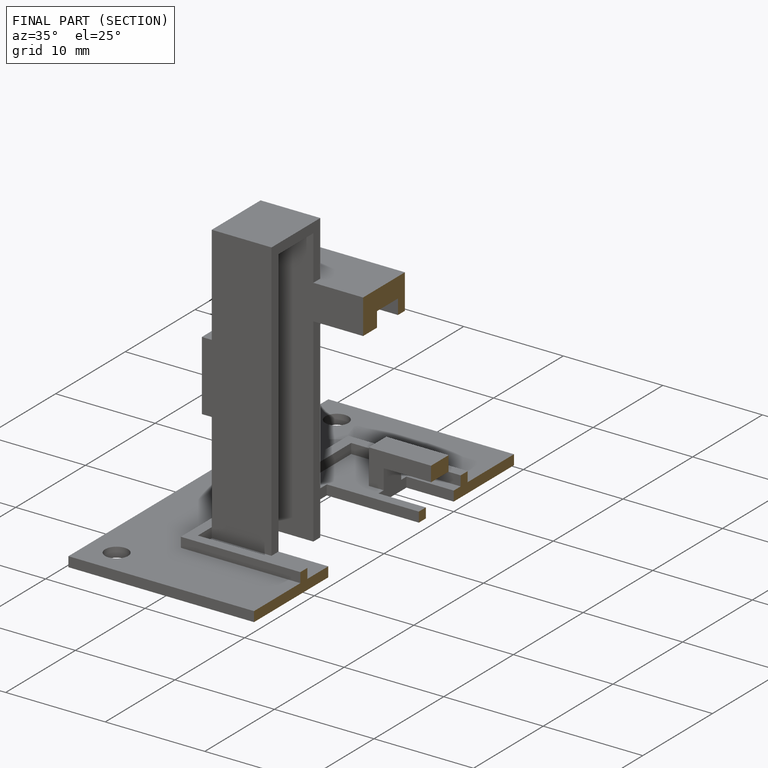
[diagram: finished part — half-section view (interior)]
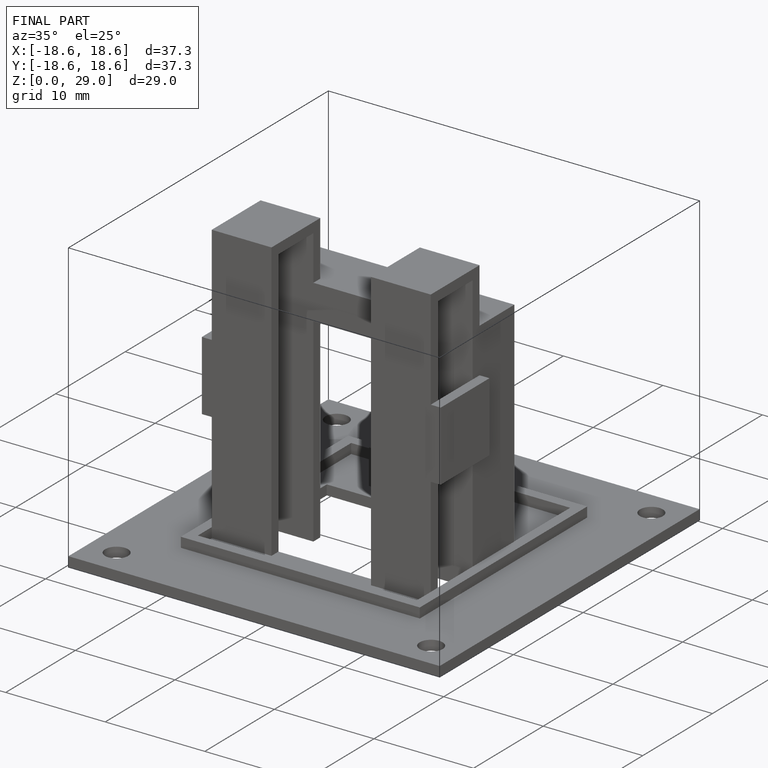
[diagram: finished part — iso view with bounding-box wireframe]
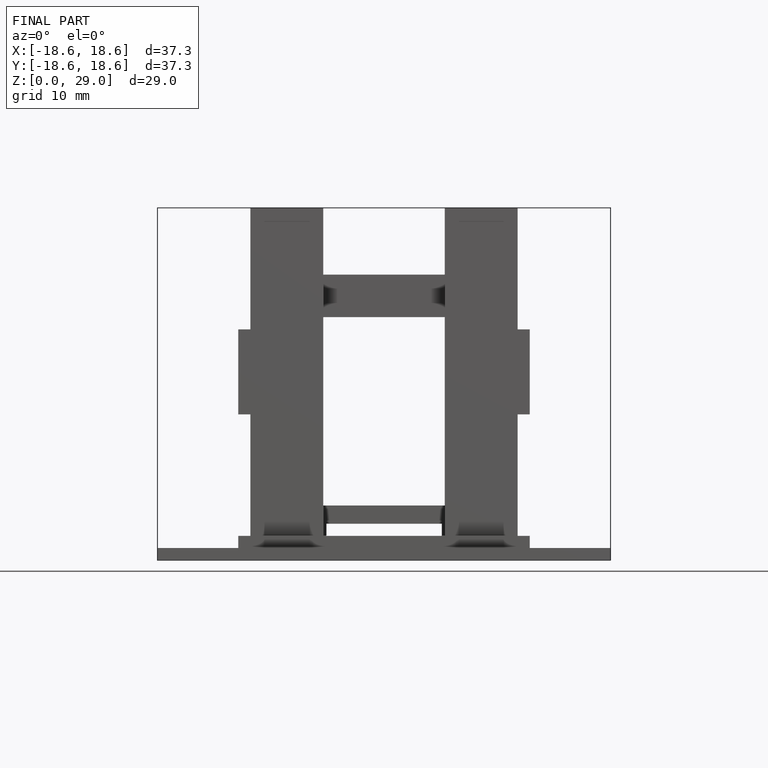
[diagram: finished part — front view with bounding-box wireframe]
